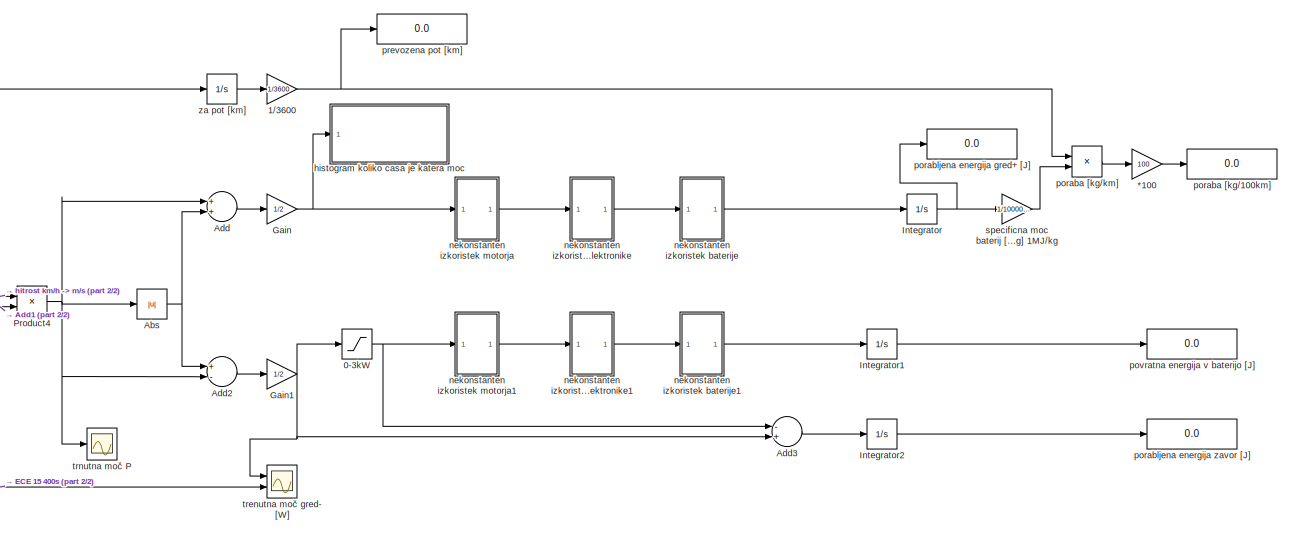
[diagram: root canvas - part 1/2, right side, full height]
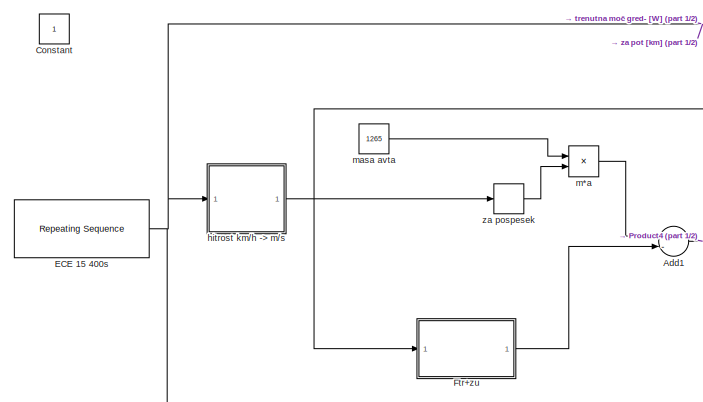
[diagram: root canvas - part 2/2, middle left region]
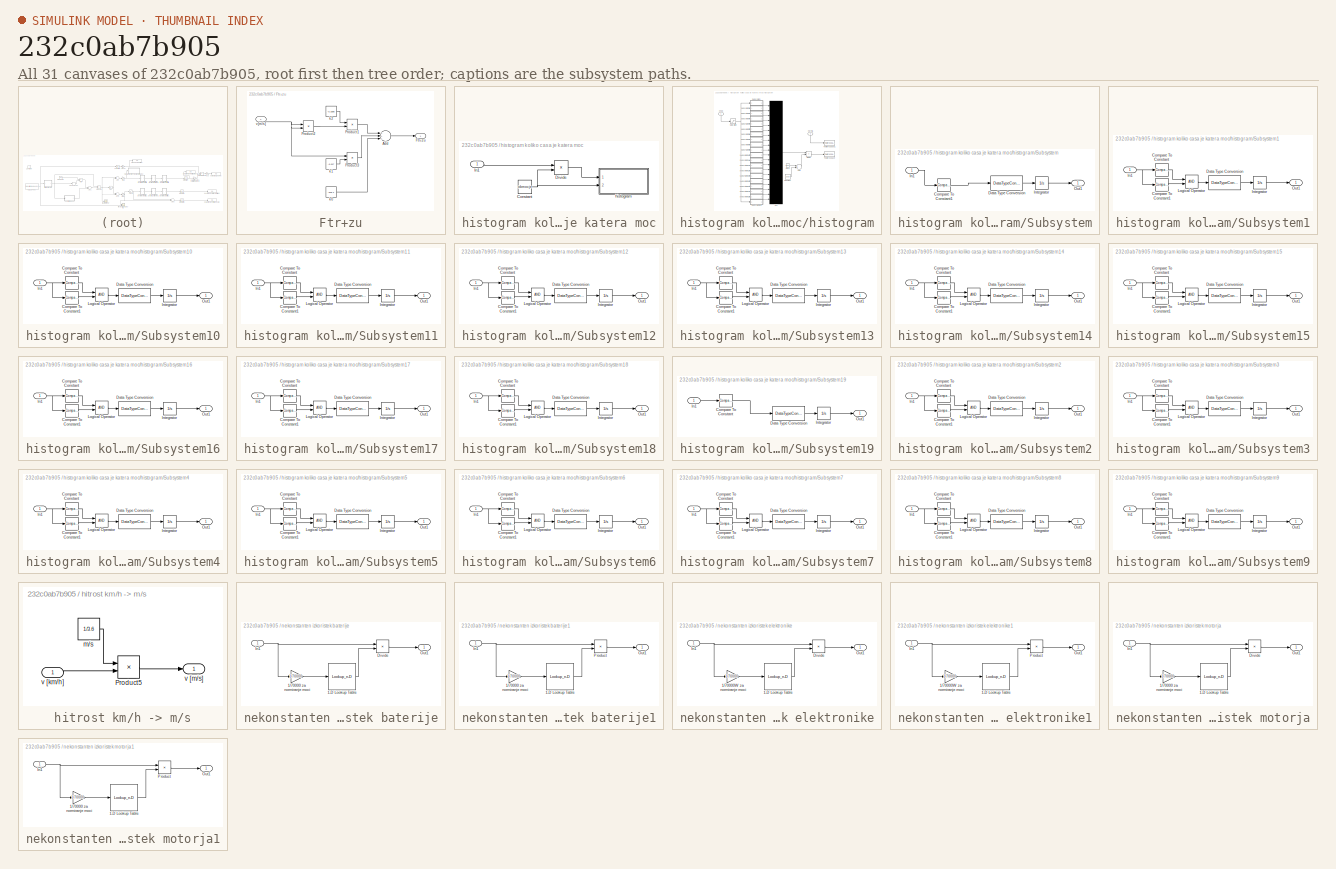
[diagram: thumbnail index - all 31 canvases of the model, root first then tree order]
MODEL slx_232c0ab7b905
KIND model
BLOCK [Gain] *100
  Gain = 100
  OutDataTypeStr = Inherit: Inherit via internal rule
  ParamDataTypeStr = Inherit: Inherit via internal rule
  SaturateOnIntegerOverflow = off
BLOCK [Saturate] 0-3kW
  InputPortMap = u0
  LowerLimit = 0
  Ports = [1, 1]
  UpperLimit = 3000
BLOCK [Gain] 1//3600
  Gain = 1/3600
  OutDataTypeStr = Inherit: Inherit via internal rule
  ParamDataTypeStr = Inherit: Inherit via internal rule
  SaturateOnIntegerOverflow = off
BLOCK [Abs] Abs
  SaturateOnIntegerOverflow = off
BLOCK [Sum] Add
  InputSameDT = off
  OutDataTypeStr = Inherit: Inherit via internal rule
  Ports = [2, 1]
  SaturateOnIntegerOverflow = off
BLOCK [Sum] Add1
  InputSameDT = off
  Inputs = +-
  OutDataTypeStr = Inherit: Inherit via internal rule
  Ports = [2, 1]
  SaturateOnIntegerOverflow = off
BLOCK [Sum] Add2
  InputSameDT = off
  Inputs = +-
  OutDataTypeStr = Inherit: Inherit via internal rule
  Ports = [2, 1]
  SaturateOnIntegerOverflow = off
BLOCK [Sum] Add3
  InputSameDT = off
  Inputs = -+
  OutDataTypeStr = Inherit: Inherit via internal rule
  Ports = [2, 1]
  SaturateOnIntegerOverflow = off
BLOCK [Constant] Constant
  IOType = siggen
BLOCK [Reference] ECE 15 400s  REF=simulink/Sources/Repeating
Sequence
  Ports = [0, 1]
  SourceBlock = simulink/Sources/Repeating\nSequence
  SourceType = Repeating table
  rep_seq_t = [0.0 11.3 15.0 23.2 28.2 48.9 60.8 85.2 95.9 117.2 142.8 154.8 162.9 176.0 188.0 200.0]
  rep_seq_y = [0.0 0.0 5.0 5.0 0.0 0.0 32.0 32.0 0.0 0.0 50.0 50.0 35.0 35.0 0.0 0.0]
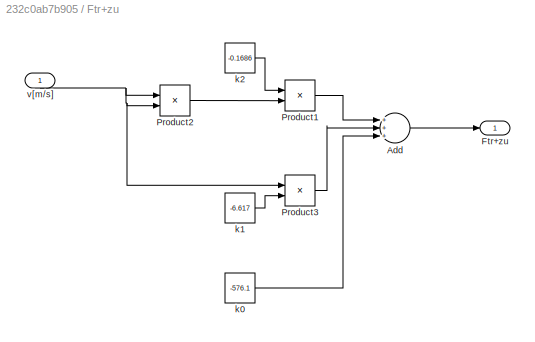
BLOCK [SubSystem] Ftr+zu
  FunctionWithSeparateData = off
  MaskHideContents = off
  MinAlgLoopOccurrences = off
  Opaque = off
  Ports = [1, 1]
  PropExecContextOutsideSubsystem = off
  RTWSystemCode = Auto
  RequestExecContextInheritance = off
BLOCK [Sum] Ftr+zu/Add
  InputSameDT = off
  Inputs = +++
  OutDataTypeStr = Inherit: Inherit via internal rule
  Ports = [3, 1]
  SaturateOnIntegerOverflow = off
BLOCK [Outport] Ftr+zu/Ftr+zu
  IconDisplay = Port number
BLOCK [Product] Ftr+zu/Product1
  InputSameDT = off
  OutDataTypeStr = Inherit: Inherit via internal rule
  Ports = [2, 1]
  RndMeth = Floor
  SaturateOnIntegerOverflow = off
BLOCK [Product] Ftr+zu/Product2
  InputSameDT = off
  OutDataTypeStr = Inherit: Inherit via internal rule
  Ports = [2, 1]
  RndMeth = Floor
  SaturateOnIntegerOverflow = off
BLOCK [Product] Ftr+zu/Product3
  InputSameDT = off
  OutDataTypeStr = Inherit: Inherit via internal rule
  Ports = [2, 1]
  RndMeth = Floor
  SaturateOnIntegerOverflow = off
BLOCK [Constant] Ftr+zu/k0
  Value = -576.1
BLOCK [Constant] Ftr+zu/k1
  Value = -6.617
BLOCK [Constant] Ftr+zu/k2
  Value = -0.1686
BLOCK [Inport] Ftr+zu/v[m//s]
  IconDisplay = Port number
BLOCK [Gain] Gain
  Gain = 1/2
  OutDataTypeStr = Inherit: Inherit via internal rule
  ParamDataTypeStr = Inherit: Inherit via internal rule
  SaturateOnIntegerOverflow = off
BLOCK [Gain] Gain1
  Gain = 1/2
  OutDataTypeStr = Inherit: Inherit via internal rule
  ParamDataTypeStr = Inherit: Inherit via internal rule
  SaturateOnIntegerOverflow = off
BLOCK [Integrator] Integrator
  Ports = [1, 1]
BLOCK [Integrator] Integrator1
  Ports = [1, 1]
BLOCK [Integrator] Integrator2
  Ports = [1, 1]
BLOCK [Product] Product4
  InputSameDT = off
  OutDataTypeStr = Inherit: Inherit via internal rule
  Ports = [2, 1]
  RndMeth = Floor
  SaturateOnIntegerOverflow = off
BLOCK [SubSystem] histogram koliko casa je katera moc
  FunctionWithSeparateData = off
  MaskHideContents = off
  MinAlgLoopOccurrences = off
  Opaque = off
  Ports = [1]
  PropExecContextOutsideSubsystem = off
  RTWSystemCode = Auto
  RequestExecContextInheritance = off
BLOCK [Constant] histogram koliko casa je katera moc/Constant
  Value = obmocje
BLOCK [Product] histogram koliko casa je katera moc/Divide
  InputSameDT = off
  Inputs = */
  OutDataTypeStr = Inherit: Inherit via internal rule
  Ports = [2, 1]
  RndMeth = Floor
  SaturateOnIntegerOverflow = off
BLOCK [Inport] histogram koliko casa je katera moc/In1
  IconDisplay = Port number
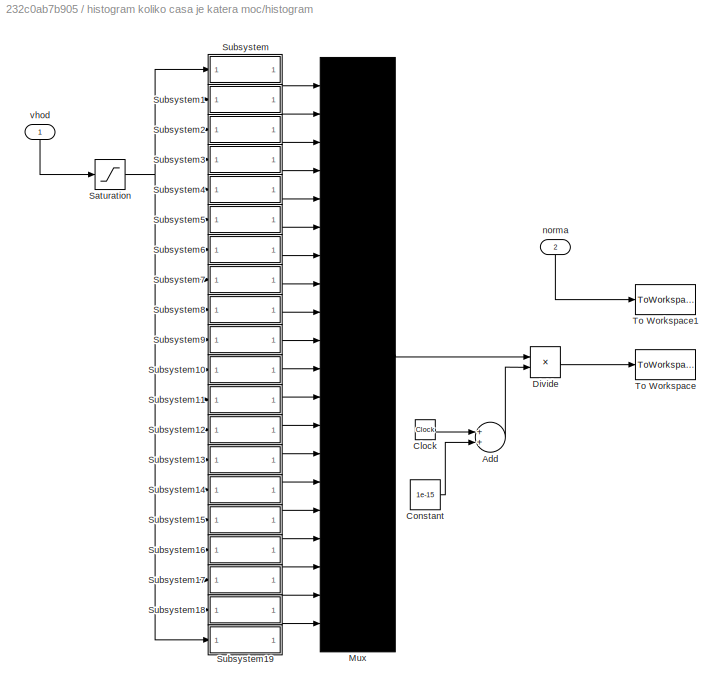
BLOCK [SubSystem] histogram koliko casa je katera moc/histogram
  FunctionWithSeparateData = off
  MaskHideContents = off
  MinAlgLoopOccurrences = off
  Opaque = off
  Ports = [2]
  PropExecContextOutsideSubsystem = off
  RTWSystemCode = Auto
  RequestExecContextInheritance = off
  StopFcn = bar((0.025:0.05:0.975)*norma,histogram_hitrost)
BLOCK [Sum] histogram koliko casa je katera moc/histogram/Add
  InputSameDT = off
  OutDataTypeStr = Inherit: Inherit via internal rule
  Ports = [2, 1]
  SaturateOnIntegerOverflow = off
BLOCK [Clock] histogram koliko casa je katera moc/histogram/Clock
BLOCK [Constant] histogram koliko casa je katera moc/histogram/Constant
  Value = 1e-15
BLOCK [Product] histogram koliko casa je katera moc/histogram/Divide
  InputSameDT = off
  Inputs = */
  OutDataTypeStr = Inherit: Inherit via internal rule
  Ports = [2, 1]
  RndMeth = Floor
  SaturateOnIntegerOverflow = off
BLOCK [Mux] histogram koliko casa je katera moc/histogram/Mux
  Inputs = 20
  Ports = [20, 1]
BLOCK [Saturate] histogram koliko casa je katera moc/histogram/Saturation
  InputPortMap = u0
  LowerLimit = 0
  Ports = [1, 1]
  UpperLimit = 1
BLOCK [SubSystem] histogram koliko casa je katera moc/histogram/Subsystem
  FunctionWithSeparateData = off
  MaskHideContents = off
  MinAlgLoopOccurrences = off
  Opaque = off
  Ports = [1, 1]
  PropExecContextOutsideSubsystem = off
  RTWSystemCode = Auto
  RequestExecContextInheritance = off
BLOCK [Reference] histogram koliko casa je katera moc/histogram/Subsystem/Compare To Constant1  REF=simulink/Logic and Bit
Operations/Compare
To Constant
  OutDataTypeStr = uint8
  Ports = [1, 1]
  SourceBlock = simulink/Logic and Bit\nOperations/Compare\nTo Constant
  SourceType = Compare To Constant
  ZeroCross = off
  const = 0.05
  relop = <
BLOCK [DataTypeConversion] histogram koliko casa je katera moc/histogram/Subsystem/Data Type Conversion
  OutDataTypeStr = double
  RndMeth = Floor
  SaturateOnIntegerOverflow = off
BLOCK [Inport] histogram koliko casa je katera moc/histogram/Subsystem/In1
  IconDisplay = Port number
BLOCK [Integrator] histogram koliko casa je katera moc/histogram/Subsystem/Integrator
  Ports = [1, 1]
  ZeroCross = off
BLOCK [Outport] histogram koliko casa je katera moc/histogram/Subsystem/Out1
  IconDisplay = Port number
BLOCK [SubSystem] histogram koliko casa je katera moc/histogram/Subsystem1
  FunctionWithSeparateData = off
  MaskHideContents = off
  MinAlgLoopOccurrences = off
  Opaque = off
  Ports = [1, 1]
  PropExecContextOutsideSubsystem = off
  RTWSystemCode = Auto
  RequestExecContextInheritance = off
BLOCK [Reference] histogram koliko casa je katera moc/histogram/Subsystem1/Compare To Constant  REF=simulink/Logic and Bit
Operations/Compare
To Constant
  OutDataTypeStr = uint8
  Ports = [1, 1]
  SourceBlock = simulink/Logic and Bit\nOperations/Compare\nTo Constant
  SourceType = Compare To Constant
  ZeroCross = off
  const = 0.05
  relop = >=
BLOCK [Reference] histogram koliko casa je katera moc/histogram/Subsystem1/Compare To Constant1  REF=simulink/Logic and Bit
Operations/Compare
To Constant
  OutDataTypeStr = uint8
  Ports = [1, 1]
  SourceBlock = simulink/Logic and Bit\nOperations/Compare\nTo Constant
  SourceType = Compare To Constant
  ZeroCross = off
  const = 0.1
  relop = <
BLOCK [DataTypeConversion] histogram koliko casa je katera moc/histogram/Subsystem1/Data Type Conversion
  OutDataTypeStr = double
  RndMeth = Floor
  SaturateOnIntegerOverflow = off
BLOCK [Inport] histogram koliko casa je katera moc/histogram/Subsystem1/In1
  IconDisplay = Port number
BLOCK [Integrator] histogram koliko casa je katera moc/histogram/Subsystem1/Integrator
  Ports = [1, 1]
  ZeroCross = off
BLOCK [Logic] histogram koliko casa je katera moc/histogram/Subsystem1/Logical Operator
  AllPortsSameDT = off
  OutDataTypeStr = boolean
  Ports = [2, 1]
BLOCK [Outport] histogram koliko casa je katera moc/histogram/Subsystem1/Out1
  IconDisplay = Port number
BLOCK [SubSystem] histogram koliko casa je katera moc/histogram/Subsystem10
  FunctionWithSeparateData = off
  MaskHideContents = off
  MinAlgLoopOccurrences = off
  Opaque = off
  Ports = [1, 1]
  PropExecContextOutsideSubsystem = off
  RTWSystemCode = Auto
  RequestExecContextInheritance = off
BLOCK [Reference] histogram koliko casa je katera moc/histogram/Subsystem10/Compare To Constant  REF=simulink/Logic and Bit
Operations/Compare
To Constant
  OutDataTypeStr = uint8
  Ports = [1, 1]
  SourceBlock = simulink/Logic and Bit\nOperations/Compare\nTo Constant
  SourceType = Compare To Constant
  ZeroCross = off
  const = 0.5
  relop = >=
BLOCK [Reference] histogram koliko casa je katera moc/histogram/Subsystem10/Compare To Constant1  REF=simulink/Logic and Bit
Operations/Compare
To Constant
  OutDataTypeStr = uint8
  Ports = [1, 1]
  SourceBlock = simulink/Logic and Bit\nOperations/Compare\nTo Constant
  SourceType = Compare To Constant
  ZeroCross = off
  const = 0.55
  relop = <
BLOCK [DataTypeConversion] histogram koliko casa je katera moc/histogram/Subsystem10/Data Type Conversion
  OutDataTypeStr = double
  RndMeth = Floor
  SaturateOnIntegerOverflow = off
BLOCK [Inport] histogram koliko casa je katera moc/histogram/Subsystem10/In1
  IconDisplay = Port number
BLOCK [Integrator] histogram koliko casa je katera moc/histogram/Subsystem10/Integrator
  Ports = [1, 1]
  ZeroCross = off
BLOCK [Logic] histogram koliko casa je katera moc/histogram/Subsystem10/Logical Operator
  AllPortsSameDT = off
  OutDataTypeStr = boolean
  Ports = [2, 1]
BLOCK [Outport] histogram koliko casa je katera moc/histogram/Subsystem10/Out1
  IconDisplay = Port number
BLOCK [SubSystem] histogram koliko casa je katera moc/histogram/Subsystem11
  FunctionWithSeparateData = off
  MaskHideContents = off
  MinAlgLoopOccurrences = off
  Opaque = off
  Ports = [1, 1]
  PropExecContextOutsideSubsystem = off
  RTWSystemCode = Auto
  RequestExecContextInheritance = off
BLOCK [Reference] histogram koliko casa je katera moc/histogram/Subsystem11/Compare To Constant  REF=simulink/Logic and Bit
Operations/Compare
To Constant
  OutDataTypeStr = uint8
  Ports = [1, 1]
  SourceBlock = simulink/Logic and Bit\nOperations/Compare\nTo Constant
  SourceType = Compare To Constant
  ZeroCross = off
  const = 0.55
  relop = >=
BLOCK [Reference] histogram koliko casa je katera moc/histogram/Subsystem11/Compare To Constant1  REF=simulink/Logic and Bit
Operations/Compare
To Constant
  OutDataTypeStr = uint8
  Ports = [1, 1]
  SourceBlock = simulink/Logic and Bit\nOperations/Compare\nTo Constant
  SourceType = Compare To Constant
  ZeroCross = off
  const = 0.6
  relop = <
BLOCK [DataTypeConversion] histogram koliko casa je katera moc/histogram/Subsystem11/Data Type Conversion
  OutDataTypeStr = double
  RndMeth = Floor
  SaturateOnIntegerOverflow = off
BLOCK [Inport] histogram koliko casa je katera moc/histogram/Subsystem11/In1
  IconDisplay = Port number
BLOCK [Integrator] histogram koliko casa je katera moc/histogram/Subsystem11/Integrator
  Ports = [1, 1]
  ZeroCross = off
BLOCK [Logic] histogram koliko casa je katera moc/histogram/Subsystem11/Logical Operator
  AllPortsSameDT = off
  OutDataTypeStr = boolean
  Ports = [2, 1]
BLOCK [Outport] histogram koliko casa je katera moc/histogram/Subsystem11/Out1
  IconDisplay = Port number
BLOCK [SubSystem] histogram koliko casa je katera moc/histogram/Subsystem12
  FunctionWithSeparateData = off
  MaskHideContents = off
  MinAlgLoopOccurrences = off
  Opaque = off
  Ports = [1, 1]
  PropExecContextOutsideSubsystem = off
  RTWSystemCode = Auto
  RequestExecContextInheritance = off
BLOCK [Reference] histogram koliko casa je katera moc/histogram/Subsystem12/Compare To Constant  REF=simulink/Logic and Bit
Operations/Compare
To Constant
  OutDataTypeStr = uint8
  Ports = [1, 1]
  SourceBlock = simulink/Logic and Bit\nOperations/Compare\nTo Constant
  SourceType = Compare To Constant
  ZeroCross = off
  const = 0.6
  relop = >=
BLOCK [Reference] histogram koliko casa je katera moc/histogram/Subsystem12/Compare To Constant1  REF=simulink/Logic and Bit
Operations/Compare
To Constant
  OutDataTypeStr = uint8
  Ports = [1, 1]
  SourceBlock = simulink/Logic and Bit\nOperations/Compare\nTo Constant
  SourceType = Compare To Constant
  ZeroCross = off
  const = 0.65
  relop = <
BLOCK [DataTypeConversion] histogram koliko casa je katera moc/histogram/Subsystem12/Data Type Conversion
  OutDataTypeStr = double
  RndMeth = Floor
  SaturateOnIntegerOverflow = off
BLOCK [Inport] histogram koliko casa je katera moc/histogram/Subsystem12/In1
  IconDisplay = Port number
BLOCK [Integrator] histogram koliko casa je katera moc/histogram/Subsystem12/Integrator
  Ports = [1, 1]
  ZeroCross = off
BLOCK [Logic] histogram koliko casa je katera moc/histogram/Subsystem12/Logical Operator
  AllPortsSameDT = off
  OutDataTypeStr = boolean
  Ports = [2, 1]
BLOCK [Outport] histogram koliko casa je katera moc/histogram/Subsystem12/Out1
  IconDisplay = Port number
BLOCK [SubSystem] histogram koliko casa je katera moc/histogram/Subsystem13
  FunctionWithSeparateData = off
  MaskHideContents = off
  MinAlgLoopOccurrences = off
  Opaque = off
  Ports = [1, 1]
  PropExecContextOutsideSubsystem = off
  RTWSystemCode = Auto
  RequestExecContextInheritance = off
BLOCK [Reference] histogram koliko casa je katera moc/histogram/Subsystem13/Compare To Constant  REF=simulink/Logic and Bit
Operations/Compare
To Constant
  OutDataTypeStr = uint8
  Ports = [1, 1]
  SourceBlock = simulink/Logic and Bit\nOperations/Compare\nTo Constant
  SourceType = Compare To Constant
  ZeroCross = off
  const = 0.65
  relop = >=
BLOCK [Reference] histogram koliko casa je katera moc/histogram/Subsystem13/Compare To Constant1  REF=simulink/Logic and Bit
Operations/Compare
To Constant
  OutDataTypeStr = uint8
  Ports = [1, 1]
  SourceBlock = simulink/Logic and Bit\nOperations/Compare\nTo Constant
  SourceType = Compare To Constant
  ZeroCross = off
  const = 0.7
  relop = <
BLOCK [DataTypeConversion] histogram koliko casa je katera moc/histogram/Subsystem13/Data Type Conversion
  OutDataTypeStr = double
  RndMeth = Floor
  SaturateOnIntegerOverflow = off
BLOCK [Inport] histogram koliko casa je katera moc/histogram/Subsystem13/In1
  IconDisplay = Port number
BLOCK [Integrator] histogram koliko casa je katera moc/histogram/Subsystem13/Integrator
  Ports = [1, 1]
  ZeroCross = off
BLOCK [Logic] histogram koliko casa je katera moc/histogram/Subsystem13/Logical Operator
  AllPortsSameDT = off
  OutDataTypeStr = boolean
  Ports = [2, 1]
BLOCK [Outport] histogram koliko casa je katera moc/histogram/Subsystem13/Out1
  IconDisplay = Port number
BLOCK [SubSystem] histogram koliko casa je katera moc/histogram/Subsystem14
  FunctionWithSeparateData = off
  MaskHideContents = off
  MinAlgLoopOccurrences = off
  Opaque = off
  Ports = [1, 1]
  PropExecContextOutsideSubsystem = off
  RTWSystemCode = Auto
  RequestExecContextInheritance = off
BLOCK [Reference] histogram koliko casa je katera moc/histogram/Subsystem14/Compare To Constant  REF=simulink/Logic and Bit
Operations/Compare
To Constant
  OutDataTypeStr = uint8
  Ports = [1, 1]
  SourceBlock = simulink/Logic and Bit\nOperations/Compare\nTo Constant
  SourceType = Compare To Constant
  ZeroCross = off
  const = 0.7
  relop = >=
BLOCK [Reference] histogram koliko casa je katera moc/histogram/Subsystem14/Compare To Constant1  REF=simulink/Logic and Bit
Operations/Compare
To Constant
  OutDataTypeStr = uint8
  Ports = [1, 1]
  SourceBlock = simulink/Logic and Bit\nOperations/Compare\nTo Constant
  SourceType = Compare To Constant
  ZeroCross = off
  const = 0.75
  relop = <
BLOCK [DataTypeConversion] histogram koliko casa je katera moc/histogram/Subsystem14/Data Type Conversion
  OutDataTypeStr = double
  RndMeth = Floor
  SaturateOnIntegerOverflow = off
BLOCK [Inport] histogram koliko casa je katera moc/histogram/Subsystem14/In1
  IconDisplay = Port number
BLOCK [Integrator] histogram koliko casa je katera moc/histogram/Subsystem14/Integrator
  Ports = [1, 1]
  ZeroCross = off
BLOCK [Logic] histogram koliko casa je katera moc/histogram/Subsystem14/Logical Operator
  AllPortsSameDT = off
  OutDataTypeStr = boolean
  Ports = [2, 1]
BLOCK [Outport] histogram koliko casa je katera moc/histogram/Subsystem14/Out1
  IconDisplay = Port number
BLOCK [SubSystem] histogram koliko casa je katera moc/histogram/Subsystem15
  FunctionWithSeparateData = off
  MaskHideContents = off
  MinAlgLoopOccurrences = off
  Opaque = off
  Ports = [1, 1]
  PropExecContextOutsideSubsystem = off
  RTWSystemCode = Auto
  RequestExecContextInheritance = off
BLOCK [Reference] histogram koliko casa je katera moc/histogram/Subsystem15/Compare To Constant  REF=simulink/Logic and Bit
Operations/Compare
To Constant
  OutDataTypeStr = uint8
  Ports = [1, 1]
  SourceBlock = simulink/Logic and Bit\nOperations/Compare\nTo Constant
  SourceType = Compare To Constant
  ZeroCross = off
  const = 0.75
  relop = >=
BLOCK [Reference] histogram koliko casa je katera moc/histogram/Subsystem15/Compare To Constant1  REF=simulink/Logic and Bit
Operations/Compare
To Constant
  OutDataTypeStr = uint8
  Ports = [1, 1]
  SourceBlock = simulink/Logic and Bit\nOperations/Compare\nTo Constant
  SourceType = Compare To Constant
  ZeroCross = off
  const = 0.8
  relop = <
BLOCK [DataTypeConversion] histogram koliko casa je katera moc/histogram/Subsystem15/Data Type Conversion
  OutDataTypeStr = double
  RndMeth = Floor
  SaturateOnIntegerOverflow = off
BLOCK [Inport] histogram koliko casa je katera moc/histogram/Subsystem15/In1
  IconDisplay = Port number
BLOCK [Integrator] histogram koliko casa je katera moc/histogram/Subsystem15/Integrator
  Ports = [1, 1]
  ZeroCross = off
BLOCK [Logic] histogram koliko casa je katera moc/histogram/Subsystem15/Logical Operator
  AllPortsSameDT = off
  OutDataTypeStr = boolean
  Ports = [2, 1]
BLOCK [Outport] histogram koliko casa je katera moc/histogram/Subsystem15/Out1
  IconDisplay = Port number
BLOCK [SubSystem] histogram koliko casa je katera moc/histogram/Subsystem16
  FunctionWithSeparateData = off
  MaskHideContents = off
  MinAlgLoopOccurrences = off
  Opaque = off
  Ports = [1, 1]
  PropExecContextOutsideSubsystem = off
  RTWSystemCode = Auto
  RequestExecContextInheritance = off
BLOCK [Reference] histogram koliko casa je katera moc/histogram/Subsystem16/Compare To Constant  REF=simulink/Logic and Bit
Operations/Compare
To Constant
  OutDataTypeStr = uint8
  Ports = [1, 1]
  SourceBlock = simulink/Logic and Bit\nOperations/Compare\nTo Constant
  SourceType = Compare To Constant
  ZeroCross = off
  const = 0.8
  relop = >=
BLOCK [Reference] histogram koliko casa je katera moc/histogram/Subsystem16/Compare To Constant1  REF=simulink/Logic and Bit
Operations/Compare
To Constant
  OutDataTypeStr = uint8
  Ports = [1, 1]
  SourceBlock = simulink/Logic and Bit\nOperations/Compare\nTo Constant
  SourceType = Compare To Constant
  ZeroCross = off
  const = 0.85
  relop = <
BLOCK [DataTypeConversion] histogram koliko casa je katera moc/histogram/Subsystem16/Data Type Conversion
  OutDataTypeStr = double
  RndMeth = Floor
  SaturateOnIntegerOverflow = off
BLOCK [Inport] histogram koliko casa je katera moc/histogram/Subsystem16/In1
  IconDisplay = Port number
BLOCK [Integrator] histogram koliko casa je katera moc/histogram/Subsystem16/Integrator
  Ports = [1, 1]
  ZeroCross = off
BLOCK [Logic] histogram koliko casa je katera moc/histogram/Subsystem16/Logical Operator
  AllPortsSameDT = off
  OutDataTypeStr = boolean
  Ports = [2, 1]
BLOCK [Outport] histogram koliko casa je katera moc/histogram/Subsystem16/Out1
  IconDisplay = Port number
BLOCK [SubSystem] histogram koliko casa je katera moc/histogram/Subsystem17
  FunctionWithSeparateData = off
  MaskHideContents = off
  MinAlgLoopOccurrences = off
  Opaque = off
  Ports = [1, 1]
  PropExecContextOutsideSubsystem = off
  RTWSystemCode = Auto
  RequestExecContextInheritance = off
BLOCK [Reference] histogram koliko casa je katera moc/histogram/Subsystem17/Compare To Constant  REF=simulink/Logic and Bit
Operations/Compare
To Constant
  OutDataTypeStr = uint8
  Ports = [1, 1]
  SourceBlock = simulink/Logic and Bit\nOperations/Compare\nTo Constant
  SourceType = Compare To Constant
  ZeroCross = off
  const = 0.85
  relop = >=
BLOCK [Reference] histogram koliko casa je katera moc/histogram/Subsystem17/Compare To Constant1  REF=simulink/Logic and Bit
Operations/Compare
To Constant
  OutDataTypeStr = uint8
  Ports = [1, 1]
  SourceBlock = simulink/Logic and Bit\nOperations/Compare\nTo Constant
  SourceType = Compare To Constant
  ZeroCross = off
  const = 0.9
  relop = <
BLOCK [DataTypeConversion] histogram koliko casa je katera moc/histogram/Subsystem17/Data Type Conversion
  OutDataTypeStr = double
  RndMeth = Floor
  SaturateOnIntegerOverflow = off
BLOCK [Inport] histogram koliko casa je katera moc/histogram/Subsystem17/In1
  IconDisplay = Port number
BLOCK [Integrator] histogram koliko casa je katera moc/histogram/Subsystem17/Integrator
  Ports = [1, 1]
  ZeroCross = off
BLOCK [Logic] histogram koliko casa je katera moc/histogram/Subsystem17/Logical Operator
  AllPortsSameDT = off
  OutDataTypeStr = boolean
  Ports = [2, 1]
BLOCK [Outport] histogram koliko casa je katera moc/histogram/Subsystem17/Out1
  IconDisplay = Port number
BLOCK [SubSystem] histogram koliko casa je katera moc/histogram/Subsystem18
  FunctionWithSeparateData = off
  MaskHideContents = off
  MinAlgLoopOccurrences = off
  Opaque = off
  Ports = [1, 1]
  PropExecContextOutsideSubsystem = off
  RTWSystemCode = Auto
  RequestExecContextInheritance = off
BLOCK [Reference] histogram koliko casa je katera moc/histogram/Subsystem18/Compare To Constant  REF=simulink/Logic and Bit
Operations/Compare
To Constant
  OutDataTypeStr = uint8
  Ports = [1, 1]
  SourceBlock = simulink/Logic and Bit\nOperations/Compare\nTo Constant
  SourceType = Compare To Constant
  ZeroCross = off
  const = 0.9
  relop = >=
BLOCK [Reference] histogram koliko casa je katera moc/histogram/Subsystem18/Compare To Constant1  REF=simulink/Logic and Bit
Operations/Compare
To Constant
  OutDataTypeStr = uint8
  Ports = [1, 1]
  SourceBlock = simulink/Logic and Bit\nOperations/Compare\nTo Constant
  SourceType = Compare To Constant
  ZeroCross = off
  const = 0.95
  relop = <
BLOCK [DataTypeConversion] histogram koliko casa je katera moc/histogram/Subsystem18/Data Type Conversion
  OutDataTypeStr = double
  RndMeth = Floor
  SaturateOnIntegerOverflow = off
BLOCK [Inport] histogram koliko casa je katera moc/histogram/Subsystem18/In1
  IconDisplay = Port number
BLOCK [Integrator] histogram koliko casa je katera moc/histogram/Subsystem18/Integrator
  Ports = [1, 1]
  ZeroCross = off
BLOCK [Logic] histogram koliko casa je katera moc/histogram/Subsystem18/Logical Operator
  AllPortsSameDT = off
  OutDataTypeStr = boolean
  Ports = [2, 1]
BLOCK [Outport] histogram koliko casa je katera moc/histogram/Subsystem18/Out1
  IconDisplay = Port number
BLOCK [SubSystem] histogram koliko casa je katera moc/histogram/Subsystem19
  FunctionWithSeparateData = off
  MaskHideContents = off
  MinAlgLoopOccurrences = off
  Opaque = off
  Ports = [1, 1]
  PropExecContextOutsideSubsystem = off
  RTWSystemCode = Auto
  RequestExecContextInheritance = off
BLOCK [Reference] histogram koliko casa je katera moc/histogram/Subsystem19/Compare To Constant  REF=simulink/Logic and Bit
Operations/Compare
To Constant
  OutDataTypeStr = uint8
  Ports = [1, 1]
  SourceBlock = simulink/Logic and Bit\nOperations/Compare\nTo Constant
  SourceType = Compare To Constant
  ZeroCross = off
  const = 0.95
  relop = >=
BLOCK [DataTypeConversion] histogram koliko casa je katera moc/histogram/Subsystem19/Data Type Conversion
  OutDataTypeStr = double
  RndMeth = Floor
  SaturateOnIntegerOverflow = off
BLOCK [Inport] histogram koliko casa je katera moc/histogram/Subsystem19/In1
  IconDisplay = Port number
BLOCK [Integrator] histogram koliko casa je katera moc/histogram/Subsystem19/Integrator
  Ports = [1, 1]
  ZeroCross = off
BLOCK [Outport] histogram koliko casa je katera moc/histogram/Subsystem19/Out1
  IconDisplay = Port number
BLOCK [SubSystem] histogram koliko casa je katera moc/histogram/Subsystem2
  FunctionWithSeparateData = off
  MaskHideContents = off
  MinAlgLoopOccurrences = off
  Opaque = off
  Ports = [1, 1]
  PropExecContextOutsideSubsystem = off
  RTWSystemCode = Auto
  RequestExecContextInheritance = off
BLOCK [Reference] histogram koliko casa je katera moc/histogram/Subsystem2/Compare To Constant  REF=simulink/Logic and Bit
Operations/Compare
To Constant
  OutDataTypeStr = uint8
  Ports = [1, 1]
  SourceBlock = simulink/Logic and Bit\nOperations/Compare\nTo Constant
  SourceType = Compare To Constant
  ZeroCross = off
  const = 0.1
  relop = >=
BLOCK [Reference] histogram koliko casa je katera moc/histogram/Subsystem2/Compare To Constant1  REF=simulink/Logic and Bit
Operations/Compare
To Constant
  OutDataTypeStr = uint8
  Ports = [1, 1]
  SourceBlock = simulink/Logic and Bit\nOperations/Compare\nTo Constant
  SourceType = Compare To Constant
  ZeroCross = off
  const = 0.15
  relop = <
BLOCK [DataTypeConversion] histogram koliko casa je katera moc/histogram/Subsystem2/Data Type Conversion
  OutDataTypeStr = double
  RndMeth = Floor
  SaturateOnIntegerOverflow = off
BLOCK [Inport] histogram koliko casa je katera moc/histogram/Subsystem2/In1
  IconDisplay = Port number
BLOCK [Integrator] histogram koliko casa je katera moc/histogram/Subsystem2/Integrator
  Ports = [1, 1]
  ZeroCross = off
BLOCK [Logic] histogram koliko casa je katera moc/histogram/Subsystem2/Logical Operator
  AllPortsSameDT = off
  OutDataTypeStr = boolean
  Ports = [2, 1]
BLOCK [Outport] histogram koliko casa je katera moc/histogram/Subsystem2/Out1
  IconDisplay = Port number
BLOCK [SubSystem] histogram koliko casa je katera moc/histogram/Subsystem3
  FunctionWithSeparateData = off
  MaskHideContents = off
  MinAlgLoopOccurrences = off
  Opaque = off
  Ports = [1, 1]
  PropExecContextOutsideSubsystem = off
  RTWSystemCode = Auto
  RequestExecContextInheritance = off
BLOCK [Reference] histogram koliko casa je katera moc/histogram/Subsystem3/Compare To Constant  REF=simulink/Logic and Bit
Operations/Compare
To Constant
  OutDataTypeStr = uint8
  Ports = [1, 1]
  SourceBlock = simulink/Logic and Bit\nOperations/Compare\nTo Constant
  SourceType = Compare To Constant
  ZeroCross = off
  const = 0.15
  relop = >=
BLOCK [Reference] histogram koliko casa je katera moc/histogram/Subsystem3/Compare To Constant1  REF=simulink/Logic and Bit
Operations/Compare
To Constant
  OutDataTypeStr = uint8
  Ports = [1, 1]
  SourceBlock = simulink/Logic and Bit\nOperations/Compare\nTo Constant
  SourceType = Compare To Constant
  ZeroCross = off
  const = 0.2
  relop = <
BLOCK [DataTypeConversion] histogram koliko casa je katera moc/histogram/Subsystem3/Data Type Conversion
  OutDataTypeStr = double
  RndMeth = Floor
  SaturateOnIntegerOverflow = off
BLOCK [Inport] histogram koliko casa je katera moc/histogram/Subsystem3/In1
  IconDisplay = Port number
BLOCK [Integrator] histogram koliko casa je katera moc/histogram/Subsystem3/Integrator
  Ports = [1, 1]
  ZeroCross = off
BLOCK [Logic] histogram koliko casa je katera moc/histogram/Subsystem3/Logical Operator
  AllPortsSameDT = off
  OutDataTypeStr = boolean
  Ports = [2, 1]
BLOCK [Outport] histogram koliko casa je katera moc/histogram/Subsystem3/Out1
  IconDisplay = Port number
BLOCK [SubSystem] histogram koliko casa je katera moc/histogram/Subsystem4
  FunctionWithSeparateData = off
  MaskHideContents = off
  MinAlgLoopOccurrences = off
  Opaque = off
  Ports = [1, 1]
  PropExecContextOutsideSubsystem = off
  RTWSystemCode = Auto
  RequestExecContextInheritance = off
BLOCK [Reference] histogram koliko casa je katera moc/histogram/Subsystem4/Compare To Constant  REF=simulink/Logic and Bit
Operations/Compare
To Constant
  OutDataTypeStr = uint8
  Ports = [1, 1]
  SourceBlock = simulink/Logic and Bit\nOperations/Compare\nTo Constant
  SourceType = Compare To Constant
  ZeroCross = off
  const = 0.2
  relop = >=
BLOCK [Reference] histogram koliko casa je katera moc/histogram/Subsystem4/Compare To Constant1  REF=simulink/Logic and Bit
Operations/Compare
To Constant
  OutDataTypeStr = uint8
  Ports = [1, 1]
  SourceBlock = simulink/Logic and Bit\nOperations/Compare\nTo Constant
  SourceType = Compare To Constant
  ZeroCross = off
  const = 0.25
  relop = <
BLOCK [DataTypeConversion] histogram koliko casa je katera moc/histogram/Subsystem4/Data Type Conversion
  OutDataTypeStr = double
  RndMeth = Floor
  SaturateOnIntegerOverflow = off
BLOCK [Inport] histogram koliko casa je katera moc/histogram/Subsystem4/In1
  IconDisplay = Port number
BLOCK [Integrator] histogram koliko casa je katera moc/histogram/Subsystem4/Integrator
  Ports = [1, 1]
  ZeroCross = off
BLOCK [Logic] histogram koliko casa je katera moc/histogram/Subsystem4/Logical Operator
  AllPortsSameDT = off
  OutDataTypeStr = boolean
  Ports = [2, 1]
BLOCK [Outport] histogram koliko casa je katera moc/histogram/Subsystem4/Out1
  IconDisplay = Port number
BLOCK [SubSystem] histogram koliko casa je katera moc/histogram/Subsystem5
  FunctionWithSeparateData = off
  MaskHideContents = off
  MinAlgLoopOccurrences = off
  Opaque = off
  Ports = [1, 1]
  PropExecContextOutsideSubsystem = off
  RTWSystemCode = Auto
  RequestExecContextInheritance = off
BLOCK [Reference] histogram koliko casa je katera moc/histogram/Subsystem5/Compare To Constant  REF=simulink/Logic and Bit
Operations/Compare
To Constant
  OutDataTypeStr = uint8
  Ports = [1, 1]
  SourceBlock = simulink/Logic and Bit\nOperations/Compare\nTo Constant
  SourceType = Compare To Constant
  ZeroCross = off
  const = 0.25
  relop = >=
BLOCK [Reference] histogram koliko casa je katera moc/histogram/Subsystem5/Compare To Constant1  REF=simulink/Logic and Bit
Operations/Compare
To Constant
  OutDataTypeStr = uint8
  Ports = [1, 1]
  SourceBlock = simulink/Logic and Bit\nOperations/Compare\nTo Constant
  SourceType = Compare To Constant
  ZeroCross = off
  const = 0.3
  relop = <
BLOCK [DataTypeConversion] histogram koliko casa je katera moc/histogram/Subsystem5/Data Type Conversion
  OutDataTypeStr = double
  RndMeth = Floor
  SaturateOnIntegerOverflow = off
BLOCK [Inport] histogram koliko casa je katera moc/histogram/Subsystem5/In1
  IconDisplay = Port number
BLOCK [Integrator] histogram koliko casa je katera moc/histogram/Subsystem5/Integrator
  Ports = [1, 1]
  ZeroCross = off
BLOCK [Logic] histogram koliko casa je katera moc/histogram/Subsystem5/Logical Operator
  AllPortsSameDT = off
  OutDataTypeStr = boolean
  Ports = [2, 1]
BLOCK [Outport] histogram koliko casa je katera moc/histogram/Subsystem5/Out1
  IconDisplay = Port number
BLOCK [SubSystem] histogram koliko casa je katera moc/histogram/Subsystem6
  FunctionWithSeparateData = off
  MaskHideContents = off
  MinAlgLoopOccurrences = off
  Opaque = off
  Ports = [1, 1]
  PropExecContextOutsideSubsystem = off
  RTWSystemCode = Auto
  RequestExecContextInheritance = off
BLOCK [Reference] histogram koliko casa je katera moc/histogram/Subsystem6/Compare To Constant  REF=simulink/Logic and Bit
Operations/Compare
To Constant
  OutDataTypeStr = uint8
  Ports = [1, 1]
  SourceBlock = simulink/Logic and Bit\nOperations/Compare\nTo Constant
  SourceType = Compare To Constant
  ZeroCross = off
  const = 0.3
  relop = >=
BLOCK [Reference] histogram koliko casa je katera moc/histogram/Subsystem6/Compare To Constant1  REF=simulink/Logic and Bit
Operations/Compare
To Constant
  OutDataTypeStr = uint8
  Ports = [1, 1]
  SourceBlock = simulink/Logic and Bit\nOperations/Compare\nTo Constant
  SourceType = Compare To Constant
  ZeroCross = off
  const = 0.35
  relop = <
BLOCK [DataTypeConversion] histogram koliko casa je katera moc/histogram/Subsystem6/Data Type Conversion
  OutDataTypeStr = double
  RndMeth = Floor
  SaturateOnIntegerOverflow = off
BLOCK [Inport] histogram koliko casa je katera moc/histogram/Subsystem6/In1
  IconDisplay = Port number
BLOCK [Integrator] histogram koliko casa je katera moc/histogram/Subsystem6/Integrator
  Ports = [1, 1]
  ZeroCross = off
BLOCK [Logic] histogram koliko casa je katera moc/histogram/Subsystem6/Logical Operator
  AllPortsSameDT = off
  OutDataTypeStr = boolean
  Ports = [2, 1]
BLOCK [Outport] histogram koliko casa je katera moc/histogram/Subsystem6/Out1
  IconDisplay = Port number
BLOCK [SubSystem] histogram koliko casa je katera moc/histogram/Subsystem7
  FunctionWithSeparateData = off
  MaskHideContents = off
  MinAlgLoopOccurrences = off
  Opaque = off
  Ports = [1, 1]
  PropExecContextOutsideSubsystem = off
  RTWSystemCode = Auto
  RequestExecContextInheritance = off
BLOCK [Reference] histogram koliko casa je katera moc/histogram/Subsystem7/Compare To Constant  REF=simulink/Logic and Bit
Operations/Compare
To Constant
  OutDataTypeStr = uint8
  Ports = [1, 1]
  SourceBlock = simulink/Logic and Bit\nOperations/Compare\nTo Constant
  SourceType = Compare To Constant
  ZeroCross = off
  const = 0.35
  relop = >=
BLOCK [Reference] histogram koliko casa je katera moc/histogram/Subsystem7/Compare To Constant1  REF=simulink/Logic and Bit
Operations/Compare
To Constant
  OutDataTypeStr = uint8
  Ports = [1, 1]
  SourceBlock = simulink/Logic and Bit\nOperations/Compare\nTo Constant
  SourceType = Compare To Constant
  ZeroCross = off
  const = 0.4
  relop = <
BLOCK [DataTypeConversion] histogram koliko casa je katera moc/histogram/Subsystem7/Data Type Conversion
  OutDataTypeStr = double
  RndMeth = Floor
  SaturateOnIntegerOverflow = off
BLOCK [Inport] histogram koliko casa je katera moc/histogram/Subsystem7/In1
  IconDisplay = Port number
BLOCK [Integrator] histogram koliko casa je katera moc/histogram/Subsystem7/Integrator
  Ports = [1, 1]
  ZeroCross = off
BLOCK [Logic] histogram koliko casa je katera moc/histogram/Subsystem7/Logical Operator
  AllPortsSameDT = off
  OutDataTypeStr = boolean
  Ports = [2, 1]
BLOCK [Outport] histogram koliko casa je katera moc/histogram/Subsystem7/Out1
  IconDisplay = Port number
BLOCK [SubSystem] histogram koliko casa je katera moc/histogram/Subsystem8
  FunctionWithSeparateData = off
  MaskHideContents = off
  MinAlgLoopOccurrences = off
  Opaque = off
  Ports = [1, 1]
  PropExecContextOutsideSubsystem = off
  RTWSystemCode = Auto
  RequestExecContextInheritance = off
BLOCK [Reference] histogram koliko casa je katera moc/histogram/Subsystem8/Compare To Constant  REF=simulink/Logic and Bit
Operations/Compare
To Constant
  OutDataTypeStr = uint8
  Ports = [1, 1]
  SourceBlock = simulink/Logic and Bit\nOperations/Compare\nTo Constant
  SourceType = Compare To Constant
  ZeroCross = off
  const = 0.4
  relop = >=
BLOCK [Reference] histogram koliko casa je katera moc/histogram/Subsystem8/Compare To Constant1  REF=simulink/Logic and Bit
Operations/Compare
To Constant
  OutDataTypeStr = uint8
  Ports = [1, 1]
  SourceBlock = simulink/Logic and Bit\nOperations/Compare\nTo Constant
  SourceType = Compare To Constant
  ZeroCross = off
  const = 0.45
  relop = <
BLOCK [DataTypeConversion] histogram koliko casa je katera moc/histogram/Subsystem8/Data Type Conversion
  OutDataTypeStr = double
  RndMeth = Floor
  SaturateOnIntegerOverflow = off
BLOCK [Inport] histogram koliko casa je katera moc/histogram/Subsystem8/In1
  IconDisplay = Port number
BLOCK [Integrator] histogram koliko casa je katera moc/histogram/Subsystem8/Integrator
  Ports = [1, 1]
  ZeroCross = off
BLOCK [Logic] histogram koliko casa je katera moc/histogram/Subsystem8/Logical Operator
  AllPortsSameDT = off
  OutDataTypeStr = boolean
  Ports = [2, 1]
BLOCK [Outport] histogram koliko casa je katera moc/histogram/Subsystem8/Out1
  IconDisplay = Port number
BLOCK [SubSystem] histogram koliko casa je katera moc/histogram/Subsystem9
  FunctionWithSeparateData = off
  MaskHideContents = off
  MinAlgLoopOccurrences = off
  Opaque = off
  Ports = [1, 1]
  PropExecContextOutsideSubsystem = off
  RTWSystemCode = Auto
  RequestExecContextInheritance = off
BLOCK [Reference] histogram koliko casa je katera moc/histogram/Subsystem9/Compare To Constant  REF=simulink/Logic and Bit
Operations/Compare
To Constant
  OutDataTypeStr = uint8
  Ports = [1, 1]
  SourceBlock = simulink/Logic and Bit\nOperations/Compare\nTo Constant
  SourceType = Compare To Constant
  ZeroCross = off
  const = 0.45
  relop = >=
BLOCK [Reference] histogram koliko casa je katera moc/histogram/Subsystem9/Compare To Constant1  REF=simulink/Logic and Bit
Operations/Compare
To Constant
  OutDataTypeStr = uint8
  Ports = [1, 1]
  SourceBlock = simulink/Logic and Bit\nOperations/Compare\nTo Constant
  SourceType = Compare To Constant
  ZeroCross = off
  const = 0.5
  relop = <
BLOCK [DataTypeConversion] histogram koliko casa je katera moc/histogram/Subsystem9/Data Type Conversion
  OutDataTypeStr = double
  RndMeth = Floor
  SaturateOnIntegerOverflow = off
BLOCK [Inport] histogram koliko casa je katera moc/histogram/Subsystem9/In1
  IconDisplay = Port number
BLOCK [Integrator] histogram koliko casa je katera moc/histogram/Subsystem9/Integrator
  Ports = [1, 1]
  ZeroCross = off
BLOCK [Logic] histogram koliko casa je katera moc/histogram/Subsystem9/Logical Operator
  AllPortsSameDT = off
  OutDataTypeStr = boolean
  Ports = [2, 1]
BLOCK [Outport] histogram koliko casa je katera moc/histogram/Subsystem9/Out1
  IconDisplay = Port number
BLOCK [ToWorkspace] histogram koliko casa je katera moc/histogram/To Workspace
  MaxDataPoints = 1
  Ports = [1]
  SampleTime = -1
  VariableName = histogram_hitrost
BLOCK [ToWorkspace] histogram koliko casa je katera moc/histogram/To Workspace1
  MaxDataPoints = 1
  Ports = [1]
  SampleTime = -1
  VariableName = norma
BLOCK [Inport] histogram koliko casa je katera moc/histogram/norma
  IconDisplay = Port number
  Port = 2
BLOCK [Inport] histogram koliko casa je katera moc/histogram/vhod
  IconDisplay = Port number
BLOCK [SubSystem] hitrost km//h -> m//s
  FunctionWithSeparateData = off
  MaskHideContents = off
  MinAlgLoopOccurrences = off
  Opaque = off
  Ports = [1, 1]
  PropExecContextOutsideSubsystem = off
  RTWSystemCode = Auto
  RequestExecContextInheritance = off
BLOCK [Product] hitrost km//h -> m//s/Product5
  InputSameDT = off
  OutDataTypeStr = Inherit: Inherit via internal rule
  Ports = [2, 1]
  RndMeth = Floor
  SaturateOnIntegerOverflow = off
BLOCK [Constant] hitrost km//h -> m//s/m//s 
  Value = 1/3.6
BLOCK [Inport] hitrost km//h -> m//s/v [km//h]
  IconDisplay = Port number
BLOCK [Outport] hitrost km//h -> m//s/v [m//s]
  IconDisplay = Port number
BLOCK [Product] m*a
  InputSameDT = off
  OutDataTypeStr = Inherit: Inherit via internal rule
  Ports = [2, 1]
  RndMeth = Floor
  SaturateOnIntegerOverflow = off
BLOCK [Constant] masa avta
  Value = 1265
BLOCK [SubSystem] nekonstanten izkoristek baterije
  FunctionWithSeparateData = off
  MaskHideContents = off
  MinAlgLoopOccurrences = off
  Opaque = off
  Ports = [1, 1]
  PropExecContextOutsideSubsystem = off
  RTWSystemCode = Auto
  RequestExecContextInheritance = off
BLOCK [Lookup_n-D] nekonstanten izkoristek baterije/1-D Lookup Table
  BreakpointsForDimension1 = [0 1]
  NumberOfTableDimensions = 1
  Ports = [1, 1]
  RndMeth = Simplest
  Table = [0.99 0.93]
BLOCK [Gain] nekonstanten izkoristek baterije/1//70000 za normiranje moci
  Gain = 1/70000
  OutDataTypeStr = Inherit: Inherit via internal rule
  ParamDataTypeStr = Inherit: Inherit via internal rule
  SaturateOnIntegerOverflow = off
BLOCK [Product] nekonstanten izkoristek baterije/Divide
  InputSameDT = off
  Inputs = */
  OutDataTypeStr = Inherit: Inherit via internal rule
  Ports = [2, 1]
  RndMeth = Floor
  SaturateOnIntegerOverflow = off
BLOCK [Inport] nekonstanten izkoristek baterije/In1
  IconDisplay = Port number
BLOCK [Outport] nekonstanten izkoristek baterije/Out1
  IconDisplay = Port number
BLOCK [SubSystem] nekonstanten izkoristek baterije1
  FunctionWithSeparateData = off
  MaskHideContents = off
  MinAlgLoopOccurrences = off
  Opaque = off
  Ports = [1, 1]
  PropExecContextOutsideSubsystem = off
  RTWSystemCode = Auto
  RequestExecContextInheritance = off
BLOCK [Lookup_n-D] nekonstanten izkoristek baterije1/1-D Lookup Table
  BreakpointsForDimension1 = [0 1]
  NumberOfTableDimensions = 1
  Ports = [1, 1]
  RndMeth = Simplest
  Table = [0.99 0.93]
BLOCK [Gain] nekonstanten izkoristek baterije1/1//70000 za normiranje moci
  Gain = 1/70000
  OutDataTypeStr = Inherit: Inherit via internal rule
  ParamDataTypeStr = Inherit: Inherit via internal rule
  SaturateOnIntegerOverflow = off
BLOCK [Inport] nekonstanten izkoristek baterije1/In1
  IconDisplay = Port number
BLOCK [Outport] nekonstanten izkoristek baterije1/Out1
  IconDisplay = Port number
BLOCK [Product] nekonstanten izkoristek baterije1/Product
  InputSameDT = off
  OutDataTypeStr = Inherit: Inherit via internal rule
  Ports = [2, 1]
  RndMeth = Floor
  SaturateOnIntegerOverflow = off
BLOCK [SubSystem] nekonstanten izkoristek elektronike
  FunctionWithSeparateData = off
  MaskHideContents = off
  MinAlgLoopOccurrences = off
  Opaque = off
  Ports = [1, 1]
  PropExecContextOutsideSubsystem = off
  RTWSystemCode = Auto
  RequestExecContextInheritance = off
BLOCK [Lookup_n-D] nekonstanten izkoristek elektronike/1-D Lookup Table
  BreakpointsForDimension1 = [0 0.02 0.5 1]
  NumberOfTableDimensions = 1
  Ports = [1, 1]
  RndMeth = Simplest
  Table = [0.001 0.9 0.95 0.9]
BLOCK [Gain] nekonstanten izkoristek elektronike/1//70000W za normiranje moci
  Gain = 1/70000
  OutDataTypeStr = Inherit: Inherit via internal rule
  ParamDataTypeStr = Inherit: Inherit via internal rule
  SaturateOnIntegerOverflow = off
BLOCK [Product] nekonstanten izkoristek elektronike/Divide
  InputSameDT = off
  Inputs = */
  OutDataTypeStr = Inherit: Inherit via internal rule
  Ports = [2, 1]
  RndMeth = Floor
  SaturateOnIntegerOverflow = off
BLOCK [Inport] nekonstanten izkoristek elektronike/In1
  IconDisplay = Port number
BLOCK [Outport] nekonstanten izkoristek elektronike/Out1
  IconDisplay = Port number
BLOCK [SubSystem] nekonstanten izkoristek elektronike1
  FunctionWithSeparateData = off
  MaskHideContents = off
  MinAlgLoopOccurrences = off
  Opaque = off
  Ports = [1, 1]
  PropExecContextOutsideSubsystem = off
  RTWSystemCode = Auto
  RequestExecContextInheritance = off
BLOCK [Lookup_n-D] nekonstanten izkoristek elektronike1/1-D Lookup Table
  BreakpointsForDimension1 = [0 0.02 0.5 1]
  NumberOfTableDimensions = 1
  Ports = [1, 1]
  RndMeth = Simplest
  Table = [0.001 0.9 0.95 0.9]
BLOCK [Gain] nekonstanten izkoristek elektronike1/1//70000W za normiranje moci
  Gain = 1/70000
  OutDataTypeStr = Inherit: Inherit via internal rule
  ParamDataTypeStr = Inherit: Inherit via internal rule
  SaturateOnIntegerOverflow = off
BLOCK [Inport] nekonstanten izkoristek elektronike1/In1
  IconDisplay = Port number
BLOCK [Outport] nekonstanten izkoristek elektronike1/Out1
  IconDisplay = Port number
BLOCK [Product] nekonstanten izkoristek elektronike1/Product
  InputSameDT = off
  OutDataTypeStr = Inherit: Inherit via internal rule
  Ports = [2, 1]
  RndMeth = Floor
  SaturateOnIntegerOverflow = off
BLOCK [SubSystem] nekonstanten izkoristek motorja
  FunctionWithSeparateData = off
  MaskHideContents = off
  MinAlgLoopOccurrences = off
  Opaque = off
  Ports = [1, 1]
  PropExecContextOutsideSubsystem = off
  RTWSystemCode = Auto
  RequestExecContextInheritance = off
BLOCK [Lookup_n-D] nekonstanten izkoristek motorja/1-D Lookup Table
  BreakpointsForDimension1 = [0 0.05 1]
  NumberOfTableDimensions = 1
  Ports = [1, 1]
  RndMeth = Simplest
  Table = [0.001 0.95 0.6]
BLOCK [Gain] nekonstanten izkoristek motorja/1//70000 za normiranje moci
  Gain = 1/70000
  OutDataTypeStr = Inherit: Inherit via internal rule
  ParamDataTypeStr = Inherit: Inherit via internal rule
  SaturateOnIntegerOverflow = off
BLOCK [Product] nekonstanten izkoristek motorja/Divide
  InputSameDT = off
  Inputs = */
  OutDataTypeStr = Inherit: Inherit via internal rule
  Ports = [2, 1]
  RndMeth = Floor
  SaturateOnIntegerOverflow = off
BLOCK [Inport] nekonstanten izkoristek motorja/In1
  IconDisplay = Port number
BLOCK [Outport] nekonstanten izkoristek motorja/Out1
  IconDisplay = Port number
BLOCK [SubSystem] nekonstanten izkoristek motorja1
  FunctionWithSeparateData = off
  MaskHideContents = off
  MinAlgLoopOccurrences = off
  Opaque = off
  Ports = [1, 1]
  PropExecContextOutsideSubsystem = off
  RTWSystemCode = Auto
  RequestExecContextInheritance = off
BLOCK [Lookup_n-D] nekonstanten izkoristek motorja1/1-D Lookup Table
  BreakpointsForDimension1 = [0 0.05 1]
  NumberOfTableDimensions = 1
  Ports = [1, 1]
  RndMeth = Simplest
  Table = [0.001 0.95 0.6]
BLOCK [Gain] nekonstanten izkoristek motorja1/1//70000 za normiranje moci
  Gain = 1/70000
  OutDataTypeStr = Inherit: Inherit via internal rule
  ParamDataTypeStr = Inherit: Inherit via internal rule
  SaturateOnIntegerOverflow = off
BLOCK [Inport] nekonstanten izkoristek motorja1/In1
  IconDisplay = Port number
BLOCK [Outport] nekonstanten izkoristek motorja1/Out1
  IconDisplay = Port number
BLOCK [Product] nekonstanten izkoristek motorja1/Product
  InputSameDT = off
  OutDataTypeStr = Inherit: Inherit via internal rule
  Ports = [2, 1]
  RndMeth = Floor
  SaturateOnIntegerOverflow = off
BLOCK [Display] poraba [kg//100km]
  Decimation = 1
  Lockdown = off
  Ports = [1]
BLOCK [Product] poraba [kg//km]
  InputSameDT = off
  Inputs = /*
  OutDataTypeStr = Inherit: Inherit via internal rule
  Ports = [2, 1]
  RndMeth = Floor
  SaturateOnIntegerOverflow = off
BLOCK [Display] porabljena energija gred+ [J]
  Decimation = 1
  Lockdown = off
  Ports = [1]
BLOCK [Display] porabljena energija zavor [J]
  Decimation = 1
  Lockdown = off
  Ports = [1]
BLOCK [Display] povratna energija v baterijo  [J]
  Decimation = 1
  Lockdown = off
  Ports = [1]
BLOCK [Display] prevozena pot [km]
  Decimation = 1
  Lockdown = off
  Ports = [1]
BLOCK [Gain] specificna moc baterij [J//kg] 1MJ//kg
  Gain = 1/1000000
  OutDataTypeStr = Inherit: Inherit via internal rule
  ParamDataTypeStr = Inherit: Inherit via internal rule
  SaturateOnIntegerOverflow = off
BLOCK [Scope] trenutna moč gred- [W]
  DataFormat = StructureWithTime
  Floating = off
  LimitDataPoints = off
  NumInputPorts = 2
  Ports = [2]
  SampleTime = 0
  ShowLegends = off
  YMax = 5~5
  YMin = -5~-5
  ZoomMode = yonly
BLOCK [Scope] trnutna moč P
  DataFormat = StructureWithTime
  Floating = off
  NumInputPorts = 1
  Ports = [1]
  SampleTime = 0
  SaveName = ScopeData1
  ShowLegends = off
BLOCK [Derivative] za pospesek
BLOCK [Integrator] za pot [km]
  Ports = [1, 1]
LINE *100:1 -> poraba [kg//100km]:1
NET 0-3kW:1 -> Add3:1, nekonstanten izkoristek motorja1:1
NET 1//3600:1 -> poraba [kg//km]:1, prevozena pot [km]:1
NET Abs:1 -> Add2:1, Add:2
LINE Add1:1 -> Product4:2
LINE Add2:1 -> Gain1:1
LINE Add3:1 -> Integrator2:1
LINE Add:1 -> Gain:1
NET ECE 15 400s:1 -> hitrost km//h -> m//s:1, trenutna moč gred- [W]:2, za pot [km]:1
LINE Ftr+zu/Add:1 -> Ftr+zu/Ftr+zu:1
LINE Ftr+zu/Product1:1 -> Ftr+zu/Add:1
LINE Ftr+zu/Product2:1 -> Ftr+zu/Product1:2
LINE Ftr+zu/Product3:1 -> Ftr+zu/Add:2
LINE Ftr+zu/k0:1 -> Ftr+zu/Add:3
LINE Ftr+zu/k1:1 -> Ftr+zu/Product3:2
LINE Ftr+zu/k2:1 -> Ftr+zu/Product1:1
NET Ftr+zu/v[m//s]:1 -> Ftr+zu/Product2:1, Ftr+zu/Product2:2, Ftr+zu/Product3:1
LINE Ftr+zu:1 -> Add1:2
NET Gain1:1 -> 0-3kW:1, Add3:2, trenutna moč gred- [W]:1
NET Gain:1 -> histogram koliko casa je katera moc:1, nekonstanten izkoristek motorja:1
LINE Integrator1:1 -> povratna energija v baterijo  [J]:1
LINE Integrator2:1 -> porabljena energija zavor [J]:1
NET Integrator:1 -> porabljena energija gred+ [J]:1, specificna moc baterij [J//kg] 1MJ//kg:1
NET Product4:1 -> Abs:1, Add2:2, Add:1, trnutna moč P:1
NET histogram koliko casa je katera moc/Constant:1 -> histogram koliko casa je katera moc/Divide:2, histogram koliko casa je katera moc/histogram:2
LINE histogram koliko casa je katera moc/Divide:1 -> histogram koliko casa je katera moc/histogram:1
LINE histogram koliko casa je katera moc/In1:1 -> histogram koliko casa je katera moc/Divide:1
LINE histogram koliko casa je katera moc/histogram/Add:1 -> histogram koliko casa je katera moc/histogram/Divide:2
LINE histogram koliko casa je katera moc/histogram/Clock:1 -> histogram koliko casa je katera moc/histogram/Add:1
LINE histogram koliko casa je katera moc/histogram/Constant:1 -> histogram koliko casa je katera moc/histogram/Add:2
LINE histogram koliko casa je katera moc/histogram/Divide:1 -> histogram koliko casa je katera moc/histogram/To Workspace:1
LINE histogram koliko casa je katera moc/histogram/Mux:1 -> histogram koliko casa je katera moc/histogram/Divide:1
NET histogram koliko casa je katera moc/histogram/Saturation:1 -> histogram koliko casa je katera moc/histogram/Subsystem10:1, histogram koliko casa je katera moc/histogram/Subsystem11:1, histogram koliko casa je katera moc/histogram/Subsystem12:1, histogram koliko casa je katera moc/histogram/Subsystem13:1, histogram koliko casa je katera moc/histogram/Subsystem14:1, histogram koliko casa je katera moc/histogram/Subsystem15:1, histogram koliko casa je katera moc/histogram/Subsystem16:1, histogram koliko casa je katera moc/histogram/Subsystem17:1, histogram koliko casa je katera moc/histogram/Subsystem18:1, histogram koliko casa je katera moc/histogram/Subsystem19:1, histogram koliko casa je katera moc/histogram/Subsystem1:1, histogram koliko casa je katera moc/histogram/Subsystem2:1, histogram koliko casa je katera moc/histogram/Subsystem3:1, histogram koliko casa je katera moc/histogram/Subsystem4:1, histogram koliko casa je katera moc/histogram/Subsystem5:1, histogram koliko casa je katera moc/histogram/Subsystem6:1, histogram koliko casa je katera moc/histogram/Subsystem7:1, histogram koliko casa je katera moc/histogram/Subsystem8:1, histogram koliko casa je katera moc/histogram/Subsystem9:1, histogram koliko casa je katera moc/histogram/Subsystem:1
LINE histogram koliko casa je katera moc/histogram/Subsystem/Compare To Constant1:1 -> histogram koliko casa je katera moc/histogram/Subsystem/Data Type Conversion:1
LINE histogram koliko casa je katera moc/histogram/Subsystem/Data Type Conversion:1 -> histogram koliko casa je katera moc/histogram/Subsystem/Integrator:1
LINE histogram koliko casa je katera moc/histogram/Subsystem/In1:1 -> histogram koliko casa je katera moc/histogram/Subsystem/Compare To Constant1:1
LINE histogram koliko casa je katera moc/histogram/Subsystem/Integrator:1 -> histogram koliko casa je katera moc/histogram/Subsystem/Out1:1
LINE histogram koliko casa je katera moc/histogram/Subsystem1/Compare To Constant1:1 -> histogram koliko casa je katera moc/histogram/Subsystem1/Logical Operator:2
LINE histogram koliko casa je katera moc/histogram/Subsystem1/Compare To Constant:1 -> histogram koliko casa je katera moc/histogram/Subsystem1/Logical Operator:1
LINE histogram koliko casa je katera moc/histogram/Subsystem1/Data Type Conversion:1 -> histogram koliko casa je katera moc/histogram/Subsystem1/Integrator:1
NET histogram koliko casa je katera moc/histogram/Subsystem1/In1:1 -> histogram koliko casa je katera moc/histogram/Subsystem1/Compare To Constant1:1, histogram koliko casa je katera moc/histogram/Subsystem1/Compare To Constant:1
LINE histogram koliko casa je katera moc/histogram/Subsystem1/Integrator:1 -> histogram koliko casa je katera moc/histogram/Subsystem1/Out1:1
LINE histogram koliko casa je katera moc/histogram/Subsystem1/Logical Operator:1 -> histogram koliko casa je katera moc/histogram/Subsystem1/Data Type Conversion:1
LINE histogram koliko casa je katera moc/histogram/Subsystem10/Compare To Constant1:1 -> histogram koliko casa je katera moc/histogram/Subsystem10/Logical Operator:2
LINE histogram koliko casa je katera moc/histogram/Subsystem10/Compare To Constant:1 -> histogram koliko casa je katera moc/histogram/Subsystem10/Logical Operator:1
LINE histogram koliko casa je katera moc/histogram/Subsystem10/Data Type Conversion:1 -> histogram koliko casa je katera moc/histogram/Subsystem10/Integrator:1
NET histogram koliko casa je katera moc/histogram/Subsystem10/In1:1 -> histogram koliko casa je katera moc/histogram/Subsystem10/Compare To Constant1:1, histogram koliko casa je katera moc/histogram/Subsystem10/Compare To Constant:1
LINE histogram koliko casa je katera moc/histogram/Subsystem10/Integrator:1 -> histogram koliko casa je katera moc/histogram/Subsystem10/Out1:1
LINE histogram koliko casa je katera moc/histogram/Subsystem10/Logical Operator:1 -> histogram koliko casa je katera moc/histogram/Subsystem10/Data Type Conversion:1
LINE histogram koliko casa je katera moc/histogram/Subsystem10:1 -> histogram koliko casa je katera moc/histogram/Mux:11
LINE histogram koliko casa je katera moc/histogram/Subsystem11/Compare To Constant1:1 -> histogram koliko casa je katera moc/histogram/Subsystem11/Logical Operator:2
LINE histogram koliko casa je katera moc/histogram/Subsystem11/Compare To Constant:1 -> histogram koliko casa je katera moc/histogram/Subsystem11/Logical Operator:1
LINE histogram koliko casa je katera moc/histogram/Subsystem11/Data Type Conversion:1 -> histogram koliko casa je katera moc/histogram/Subsystem11/Integrator:1
NET histogram koliko casa je katera moc/histogram/Subsystem11/In1:1 -> histogram koliko casa je katera moc/histogram/Subsystem11/Compare To Constant1:1, histogram koliko casa je katera moc/histogram/Subsystem11/Compare To Constant:1
LINE histogram koliko casa je katera moc/histogram/Subsystem11/Integrator:1 -> histogram koliko casa je katera moc/histogram/Subsystem11/Out1:1
LINE histogram koliko casa je katera moc/histogram/Subsystem11/Logical Operator:1 -> histogram koliko casa je katera moc/histogram/Subsystem11/Data Type Conversion:1
LINE histogram koliko casa je katera moc/histogram/Subsystem11:1 -> histogram koliko casa je katera moc/histogram/Mux:12
LINE histogram koliko casa je katera moc/histogram/Subsystem12/Compare To Constant1:1 -> histogram koliko casa je katera moc/histogram/Subsystem12/Logical Operator:2
LINE histogram koliko casa je katera moc/histogram/Subsystem12/Compare To Constant:1 -> histogram koliko casa je katera moc/histogram/Subsystem12/Logical Operator:1
LINE histogram koliko casa je katera moc/histogram/Subsystem12/Data Type Conversion:1 -> histogram koliko casa je katera moc/histogram/Subsystem12/Integrator:1
NET histogram koliko casa je katera moc/histogram/Subsystem12/In1:1 -> histogram koliko casa je katera moc/histogram/Subsystem12/Compare To Constant1:1, histogram koliko casa je katera moc/histogram/Subsystem12/Compare To Constant:1
LINE histogram koliko casa je katera moc/histogram/Subsystem12/Integrator:1 -> histogram koliko casa je katera moc/histogram/Subsystem12/Out1:1
LINE histogram koliko casa je katera moc/histogram/Subsystem12/Logical Operator:1 -> histogram koliko casa je katera moc/histogram/Subsystem12/Data Type Conversion:1
LINE histogram koliko casa je katera moc/histogram/Subsystem12:1 -> histogram koliko casa je katera moc/histogram/Mux:13
LINE histogram koliko casa je katera moc/histogram/Subsystem13/Compare To Constant1:1 -> histogram koliko casa je katera moc/histogram/Subsystem13/Logical Operator:2
LINE histogram koliko casa je katera moc/histogram/Subsystem13/Compare To Constant:1 -> histogram koliko casa je katera moc/histogram/Subsystem13/Logical Operator:1
LINE histogram koliko casa je katera moc/histogram/Subsystem13/Data Type Conversion:1 -> histogram koliko casa je katera moc/histogram/Subsystem13/Integrator:1
NET histogram koliko casa je katera moc/histogram/Subsystem13/In1:1 -> histogram koliko casa je katera moc/histogram/Subsystem13/Compare To Constant1:1, histogram koliko casa je katera moc/histogram/Subsystem13/Compare To Constant:1
LINE histogram koliko casa je katera moc/histogram/Subsystem13/Integrator:1 -> histogram koliko casa je katera moc/histogram/Subsystem13/Out1:1
LINE histogram koliko casa je katera moc/histogram/Subsystem13/Logical Operator:1 -> histogram koliko casa je katera moc/histogram/Subsystem13/Data Type Conversion:1
LINE histogram koliko casa je katera moc/histogram/Subsystem13:1 -> histogram koliko casa je katera moc/histogram/Mux:14
LINE histogram koliko casa je katera moc/histogram/Subsystem14/Compare To Constant1:1 -> histogram koliko casa je katera moc/histogram/Subsystem14/Logical Operator:2
LINE histogram koliko casa je katera moc/histogram/Subsystem14/Compare To Constant:1 -> histogram koliko casa je katera moc/histogram/Subsystem14/Logical Operator:1
LINE histogram koliko casa je katera moc/histogram/Subsystem14/Data Type Conversion:1 -> histogram koliko casa je katera moc/histogram/Subsystem14/Integrator:1
NET histogram koliko casa je katera moc/histogram/Subsystem14/In1:1 -> histogram koliko casa je katera moc/histogram/Subsystem14/Compare To Constant1:1, histogram koliko casa je katera moc/histogram/Subsystem14/Compare To Constant:1
LINE histogram koliko casa je katera moc/histogram/Subsystem14/Integrator:1 -> histogram koliko casa je katera moc/histogram/Subsystem14/Out1:1
LINE histogram koliko casa je katera moc/histogram/Subsystem14/Logical Operator:1 -> histogram koliko casa je katera moc/histogram/Subsystem14/Data Type Conversion:1
LINE histogram koliko casa je katera moc/histogram/Subsystem14:1 -> histogram koliko casa je katera moc/histogram/Mux:15
LINE histogram koliko casa je katera moc/histogram/Subsystem15/Compare To Constant1:1 -> histogram koliko casa je katera moc/histogram/Subsystem15/Logical Operator:2
LINE histogram koliko casa je katera moc/histogram/Subsystem15/Compare To Constant:1 -> histogram koliko casa je katera moc/histogram/Subsystem15/Logical Operator:1
LINE histogram koliko casa je katera moc/histogram/Subsystem15/Data Type Conversion:1 -> histogram koliko casa je katera moc/histogram/Subsystem15/Integrator:1
NET histogram koliko casa je katera moc/histogram/Subsystem15/In1:1 -> histogram koliko casa je katera moc/histogram/Subsystem15/Compare To Constant1:1, histogram koliko casa je katera moc/histogram/Subsystem15/Compare To Constant:1
LINE histogram koliko casa je katera moc/histogram/Subsystem15/Integrator:1 -> histogram koliko casa je katera moc/histogram/Subsystem15/Out1:1
LINE histogram koliko casa je katera moc/histogram/Subsystem15/Logical Operator:1 -> histogram koliko casa je katera moc/histogram/Subsystem15/Data Type Conversion:1
LINE histogram koliko casa je katera moc/histogram/Subsystem15:1 -> histogram koliko casa je katera moc/histogram/Mux:16
LINE histogram koliko casa je katera moc/histogram/Subsystem16/Compare To Constant1:1 -> histogram koliko casa je katera moc/histogram/Subsystem16/Logical Operator:2
LINE histogram koliko casa je katera moc/histogram/Subsystem16/Compare To Constant:1 -> histogram koliko casa je katera moc/histogram/Subsystem16/Logical Operator:1
LINE histogram koliko casa je katera moc/histogram/Subsystem16/Data Type Conversion:1 -> histogram koliko casa je katera moc/histogram/Subsystem16/Integrator:1
NET histogram koliko casa je katera moc/histogram/Subsystem16/In1:1 -> histogram koliko casa je katera moc/histogram/Subsystem16/Compare To Constant1:1, histogram koliko casa je katera moc/histogram/Subsystem16/Compare To Constant:1
LINE histogram koliko casa je katera moc/histogram/Subsystem16/Integrator:1 -> histogram koliko casa je katera moc/histogram/Subsystem16/Out1:1
LINE histogram koliko casa je katera moc/histogram/Subsystem16/Logical Operator:1 -> histogram koliko casa je katera moc/histogram/Subsystem16/Data Type Conversion:1
LINE histogram koliko casa je katera moc/histogram/Subsystem16:1 -> histogram koliko casa je katera moc/histogram/Mux:17
LINE histogram koliko casa je katera moc/histogram/Subsystem17/Compare To Constant1:1 -> histogram koliko casa je katera moc/histogram/Subsystem17/Logical Operator:2
LINE histogram koliko casa je katera moc/histogram/Subsystem17/Compare To Constant:1 -> histogram koliko casa je katera moc/histogram/Subsystem17/Logical Operator:1
LINE histogram koliko casa je katera moc/histogram/Subsystem17/Data Type Conversion:1 -> histogram koliko casa je katera moc/histogram/Subsystem17/Integrator:1
NET histogram koliko casa je katera moc/histogram/Subsystem17/In1:1 -> histogram koliko casa je katera moc/histogram/Subsystem17/Compare To Constant1:1, histogram koliko casa je katera moc/histogram/Subsystem17/Compare To Constant:1
LINE histogram koliko casa je katera moc/histogram/Subsystem17/Integrator:1 -> histogram koliko casa je katera moc/histogram/Subsystem17/Out1:1
LINE histogram koliko casa je katera moc/histogram/Subsystem17/Logical Operator:1 -> histogram koliko casa je katera moc/histogram/Subsystem17/Data Type Conversion:1
LINE histogram koliko casa je katera moc/histogram/Subsystem17:1 -> histogram koliko casa je katera moc/histogram/Mux:18
LINE histogram koliko casa je katera moc/histogram/Subsystem18/Compare To Constant1:1 -> histogram koliko casa je katera moc/histogram/Subsystem18/Logical Operator:2
LINE histogram koliko casa je katera moc/histogram/Subsystem18/Compare To Constant:1 -> histogram koliko casa je katera moc/histogram/Subsystem18/Logical Operator:1
LINE histogram koliko casa je katera moc/histogram/Subsystem18/Data Type Conversion:1 -> histogram koliko casa je katera moc/histogram/Subsystem18/Integrator:1
NET histogram koliko casa je katera moc/histogram/Subsystem18/In1:1 -> histogram koliko casa je katera moc/histogram/Subsystem18/Compare To Constant1:1, histogram koliko casa je katera moc/histogram/Subsystem18/Compare To Constant:1
LINE histogram koliko casa je katera moc/histogram/Subsystem18/Integrator:1 -> histogram koliko casa je katera moc/histogram/Subsystem18/Out1:1
LINE histogram koliko casa je katera moc/histogram/Subsystem18/Logical Operator:1 -> histogram koliko casa je katera moc/histogram/Subsystem18/Data Type Conversion:1
LINE histogram koliko casa je katera moc/histogram/Subsystem18:1 -> histogram koliko casa je katera moc/histogram/Mux:19
LINE histogram koliko casa je katera moc/histogram/Subsystem19/Compare To Constant:1 -> histogram koliko casa je katera moc/histogram/Subsystem19/Data Type Conversion:1
LINE histogram koliko casa je katera moc/histogram/Subsystem19/Data Type Conversion:1 -> histogram koliko casa je katera moc/histogram/Subsystem19/Integrator:1
LINE histogram koliko casa je katera moc/histogram/Subsystem19/In1:1 -> histogram koliko casa je katera moc/histogram/Subsystem19/Compare To Constant:1
LINE histogram koliko casa je katera moc/histogram/Subsystem19/Integrator:1 -> histogram koliko casa je katera moc/histogram/Subsystem19/Out1:1
LINE histogram koliko casa je katera moc/histogram/Subsystem19:1 -> histogram koliko casa je katera moc/histogram/Mux:20
LINE histogram koliko casa je katera moc/histogram/Subsystem1:1 -> histogram koliko casa je katera moc/histogram/Mux:2
LINE histogram koliko casa je katera moc/histogram/Subsystem2/Compare To Constant1:1 -> histogram koliko casa je katera moc/histogram/Subsystem2/Logical Operator:2
LINE histogram koliko casa je katera moc/histogram/Subsystem2/Compare To Constant:1 -> histogram koliko casa je katera moc/histogram/Subsystem2/Logical Operator:1
LINE histogram koliko casa je katera moc/histogram/Subsystem2/Data Type Conversion:1 -> histogram koliko casa je katera moc/histogram/Subsystem2/Integrator:1
NET histogram koliko casa je katera moc/histogram/Subsystem2/In1:1 -> histogram koliko casa je katera moc/histogram/Subsystem2/Compare To Constant1:1, histogram koliko casa je katera moc/histogram/Subsystem2/Compare To Constant:1
LINE histogram koliko casa je katera moc/histogram/Subsystem2/Integrator:1 -> histogram koliko casa je katera moc/histogram/Subsystem2/Out1:1
LINE histogram koliko casa je katera moc/histogram/Subsystem2/Logical Operator:1 -> histogram koliko casa je katera moc/histogram/Subsystem2/Data Type Conversion:1
LINE histogram koliko casa je katera moc/histogram/Subsystem2:1 -> histogram koliko casa je katera moc/histogram/Mux:3
LINE histogram koliko casa je katera moc/histogram/Subsystem3/Compare To Constant1:1 -> histogram koliko casa je katera moc/histogram/Subsystem3/Logical Operator:2
LINE histogram koliko casa je katera moc/histogram/Subsystem3/Compare To Constant:1 -> histogram koliko casa je katera moc/histogram/Subsystem3/Logical Operator:1
LINE histogram koliko casa je katera moc/histogram/Subsystem3/Data Type Conversion:1 -> histogram koliko casa je katera moc/histogram/Subsystem3/Integrator:1
NET histogram koliko casa je katera moc/histogram/Subsystem3/In1:1 -> histogram koliko casa je katera moc/histogram/Subsystem3/Compare To Constant1:1, histogram koliko casa je katera moc/histogram/Subsystem3/Compare To Constant:1
LINE histogram koliko casa je katera moc/histogram/Subsystem3/Integrator:1 -> histogram koliko casa je katera moc/histogram/Subsystem3/Out1:1
LINE histogram koliko casa je katera moc/histogram/Subsystem3/Logical Operator:1 -> histogram koliko casa je katera moc/histogram/Subsystem3/Data Type Conversion:1
LINE histogram koliko casa je katera moc/histogram/Subsystem3:1 -> histogram koliko casa je katera moc/histogram/Mux:4
LINE histogram koliko casa je katera moc/histogram/Subsystem4/Compare To Constant1:1 -> histogram koliko casa je katera moc/histogram/Subsystem4/Logical Operator:2
LINE histogram koliko casa je katera moc/histogram/Subsystem4/Compare To Constant:1 -> histogram koliko casa je katera moc/histogram/Subsystem4/Logical Operator:1
LINE histogram koliko casa je katera moc/histogram/Subsystem4/Data Type Conversion:1 -> histogram koliko casa je katera moc/histogram/Subsystem4/Integrator:1
NET histogram koliko casa je katera moc/histogram/Subsystem4/In1:1 -> histogram koliko casa je katera moc/histogram/Subsystem4/Compare To Constant1:1, histogram koliko casa je katera moc/histogram/Subsystem4/Compare To Constant:1
LINE histogram koliko casa je katera moc/histogram/Subsystem4/Integrator:1 -> histogram koliko casa je katera moc/histogram/Subsystem4/Out1:1
LINE histogram koliko casa je katera moc/histogram/Subsystem4/Logical Operator:1 -> histogram koliko casa je katera moc/histogram/Subsystem4/Data Type Conversion:1
LINE histogram koliko casa je katera moc/histogram/Subsystem4:1 -> histogram koliko casa je katera moc/histogram/Mux:5
LINE histogram koliko casa je katera moc/histogram/Subsystem5/Compare To Constant1:1 -> histogram koliko casa je katera moc/histogram/Subsystem5/Logical Operator:2
LINE histogram koliko casa je katera moc/histogram/Subsystem5/Compare To Constant:1 -> histogram koliko casa je katera moc/histogram/Subsystem5/Logical Operator:1
LINE histogram koliko casa je katera moc/histogram/Subsystem5/Data Type Conversion:1 -> histogram koliko casa je katera moc/histogram/Subsystem5/Integrator:1
NET histogram koliko casa je katera moc/histogram/Subsystem5/In1:1 -> histogram koliko casa je katera moc/histogram/Subsystem5/Compare To Constant1:1, histogram koliko casa je katera moc/histogram/Subsystem5/Compare To Constant:1
LINE histogram koliko casa je katera moc/histogram/Subsystem5/Integrator:1 -> histogram koliko casa je katera moc/histogram/Subsystem5/Out1:1
LINE histogram koliko casa je katera moc/histogram/Subsystem5/Logical Operator:1 -> histogram koliko casa je katera moc/histogram/Subsystem5/Data Type Conversion:1
LINE histogram koliko casa je katera moc/histogram/Subsystem5:1 -> histogram koliko casa je katera moc/histogram/Mux:6
LINE histogram koliko casa je katera moc/histogram/Subsystem6/Compare To Constant1:1 -> histogram koliko casa je katera moc/histogram/Subsystem6/Logical Operator:2
LINE histogram koliko casa je katera moc/histogram/Subsystem6/Compare To Constant:1 -> histogram koliko casa je katera moc/histogram/Subsystem6/Logical Operator:1
LINE histogram koliko casa je katera moc/histogram/Subsystem6/Data Type Conversion:1 -> histogram koliko casa je katera moc/histogram/Subsystem6/Integrator:1
NET histogram koliko casa je katera moc/histogram/Subsystem6/In1:1 -> histogram koliko casa je katera moc/histogram/Subsystem6/Compare To Constant1:1, histogram koliko casa je katera moc/histogram/Subsystem6/Compare To Constant:1
LINE histogram koliko casa je katera moc/histogram/Subsystem6/Integrator:1 -> histogram koliko casa je katera moc/histogram/Subsystem6/Out1:1
LINE histogram koliko casa je katera moc/histogram/Subsystem6/Logical Operator:1 -> histogram koliko casa je katera moc/histogram/Subsystem6/Data Type Conversion:1
LINE histogram koliko casa je katera moc/histogram/Subsystem6:1 -> histogram koliko casa je katera moc/histogram/Mux:7
LINE histogram koliko casa je katera moc/histogram/Subsystem7/Compare To Constant1:1 -> histogram koliko casa je katera moc/histogram/Subsystem7/Logical Operator:2
LINE histogram koliko casa je katera moc/histogram/Subsystem7/Compare To Constant:1 -> histogram koliko casa je katera moc/histogram/Subsystem7/Logical Operator:1
LINE histogram koliko casa je katera moc/histogram/Subsystem7/Data Type Conversion:1 -> histogram koliko casa je katera moc/histogram/Subsystem7/Integrator:1
NET histogram koliko casa je katera moc/histogram/Subsystem7/In1:1 -> histogram koliko casa je katera moc/histogram/Subsystem7/Compare To Constant1:1, histogram koliko casa je katera moc/histogram/Subsystem7/Compare To Constant:1
LINE histogram koliko casa je katera moc/histogram/Subsystem7/Integrator:1 -> histogram koliko casa je katera moc/histogram/Subsystem7/Out1:1
LINE histogram koliko casa je katera moc/histogram/Subsystem7/Logical Operator:1 -> histogram koliko casa je katera moc/histogram/Subsystem7/Data Type Conversion:1
LINE histogram koliko casa je katera moc/histogram/Subsystem7:1 -> histogram koliko casa je katera moc/histogram/Mux:8
LINE histogram koliko casa je katera moc/histogram/Subsystem8/Compare To Constant1:1 -> histogram koliko casa je katera moc/histogram/Subsystem8/Logical Operator:2
LINE histogram koliko casa je katera moc/histogram/Subsystem8/Compare To Constant:1 -> histogram koliko casa je katera moc/histogram/Subsystem8/Logical Operator:1
LINE histogram koliko casa je katera moc/histogram/Subsystem8/Data Type Conversion:1 -> histogram koliko casa je katera moc/histogram/Subsystem8/Integrator:1
NET histogram koliko casa je katera moc/histogram/Subsystem8/In1:1 -> histogram koliko casa je katera moc/histogram/Subsystem8/Compare To Constant1:1, histogram koliko casa je katera moc/histogram/Subsystem8/Compare To Constant:1
LINE histogram koliko casa je katera moc/histogram/Subsystem8/Integrator:1 -> histogram koliko casa je katera moc/histogram/Subsystem8/Out1:1
LINE histogram koliko casa je katera moc/histogram/Subsystem8/Logical Operator:1 -> histogram koliko casa je katera moc/histogram/Subsystem8/Data Type Conversion:1
LINE histogram koliko casa je katera moc/histogram/Subsystem8:1 -> histogram koliko casa je katera moc/histogram/Mux:9
LINE histogram koliko casa je katera moc/histogram/Subsystem9/Compare To Constant1:1 -> histogram koliko casa je katera moc/histogram/Subsystem9/Logical Operator:2
LINE histogram koliko casa je katera moc/histogram/Subsystem9/Compare To Constant:1 -> histogram koliko casa je katera moc/histogram/Subsystem9/Logical Operator:1
LINE histogram koliko casa je katera moc/histogram/Subsystem9/Data Type Conversion:1 -> histogram koliko casa je katera moc/histogram/Subsystem9/Integrator:1
NET histogram koliko casa je katera moc/histogram/Subsystem9/In1:1 -> histogram koliko casa je katera moc/histogram/Subsystem9/Compare To Constant1:1, histogram koliko casa je katera moc/histogram/Subsystem9/Compare To Constant:1
LINE histogram koliko casa je katera moc/histogram/Subsystem9/Integrator:1 -> histogram koliko casa je katera moc/histogram/Subsystem9/Out1:1
LINE histogram koliko casa je katera moc/histogram/Subsystem9/Logical Operator:1 -> histogram koliko casa je katera moc/histogram/Subsystem9/Data Type Conversion:1
LINE histogram koliko casa je katera moc/histogram/Subsystem9:1 -> histogram koliko casa je katera moc/histogram/Mux:10
LINE histogram koliko casa je katera moc/histogram/Subsystem:1 -> histogram koliko casa je katera moc/histogram/Mux:1
LINE histogram koliko casa je katera moc/histogram/norma:1 -> histogram koliko casa je katera moc/histogram/To Workspace1:1
LINE histogram koliko casa je katera moc/histogram/vhod:1 -> histogram koliko casa je katera moc/histogram/Saturation:1
LINE hitrost km//h -> m//s/Product5:1 -> hitrost km//h -> m//s/v [m//s]:1
LINE hitrost km//h -> m//s/m//s :1 -> hitrost km//h -> m//s/Product5:1
LINE hitrost km//h -> m//s/v [km//h]:1 -> hitrost km//h -> m//s/Product5:2
NET hitrost km//h -> m//s:1 -> Ftr+zu:1, Product4:1, za pospesek:1
LINE m*a:1 -> Add1:1
LINE masa avta:1 -> m*a:1
LINE nekonstanten izkoristek baterije/1-D Lookup Table:1 -> nekonstanten izkoristek baterije/Divide:2
LINE nekonstanten izkoristek baterije/1//70000 za normiranje moci:1 -> nekonstanten izkoristek baterije/1-D Lookup Table:1
LINE nekonstanten izkoristek baterije/Divide:1 -> nekonstanten izkoristek baterije/Out1:1
NET nekonstanten izkoristek baterije/In1:1 -> nekonstanten izkoristek baterije/1//70000 za normiranje moci:1, nekonstanten izkoristek baterije/Divide:1
LINE nekonstanten izkoristek baterije1/1-D Lookup Table:1 -> nekonstanten izkoristek baterije1/Product:2
LINE nekonstanten izkoristek baterije1/1//70000 za normiranje moci:1 -> nekonstanten izkoristek baterije1/1-D Lookup Table:1
NET nekonstanten izkoristek baterije1/In1:1 -> nekonstanten izkoristek baterije1/1//70000 za normiranje moci:1, nekonstanten izkoristek baterije1/Product:1
LINE nekonstanten izkoristek baterije1/Product:1 -> nekonstanten izkoristek baterije1/Out1:1
LINE nekonstanten izkoristek baterije1:1 -> Integrator1:1
LINE nekonstanten izkoristek baterije:1 -> Integrator:1
LINE nekonstanten izkoristek elektronike/1-D Lookup Table:1 -> nekonstanten izkoristek elektronike/Divide:2
LINE nekonstanten izkoristek elektronike/1//70000W za normiranje moci:1 -> nekonstanten izkoristek elektronike/1-D Lookup Table:1
LINE nekonstanten izkoristek elektronike/Divide:1 -> nekonstanten izkoristek elektronike/Out1:1
NET nekonstanten izkoristek elektronike/In1:1 -> nekonstanten izkoristek elektronike/1//70000W za normiranje moci:1, nekonstanten izkoristek elektronike/Divide:1
LINE nekonstanten izkoristek elektronike1/1-D Lookup Table:1 -> nekonstanten izkoristek elektronike1/Product:2
LINE nekonstanten izkoristek elektronike1/1//70000W za normiranje moci:1 -> nekonstanten izkoristek elektronike1/1-D Lookup Table:1
NET nekonstanten izkoristek elektronike1/In1:1 -> nekonstanten izkoristek elektronike1/1//70000W za normiranje moci:1, nekonstanten izkoristek elektronike1/Product:1
LINE nekonstanten izkoristek elektronike1/Product:1 -> nekonstanten izkoristek elektronike1/Out1:1
LINE nekonstanten izkoristek elektronike1:1 -> nekonstanten izkoristek baterije1:1
LINE nekonstanten izkoristek elektronike:1 -> nekonstanten izkoristek baterije:1
LINE nekonstanten izkoristek motorja/1-D Lookup Table:1 -> nekonstanten izkoristek motorja/Divide:2
LINE nekonstanten izkoristek motorja/1//70000 za normiranje moci:1 -> nekonstanten izkoristek motorja/1-D Lookup Table:1
LINE nekonstanten izkoristek motorja/Divide:1 -> nekonstanten izkoristek motorja/Out1:1
NET nekonstanten izkoristek motorja/In1:1 -> nekonstanten izkoristek motorja/1//70000 za normiranje moci:1, nekonstanten izkoristek motorja/Divide:1
LINE nekonstanten izkoristek motorja1/1-D Lookup Table:1 -> nekonstanten izkoristek motorja1/Product:2
LINE nekonstanten izkoristek motorja1/1//70000 za normiranje moci:1 -> nekonstanten izkoristek motorja1/1-D Lookup Table:1
NET nekonstanten izkoristek motorja1/In1:1 -> nekonstanten izkoristek motorja1/1//70000 za normiranje moci:1, nekonstanten izkoristek motorja1/Product:1
LINE nekonstanten izkoristek motorja1/Product:1 -> nekonstanten izkoristek motorja1/Out1:1
LINE nekonstanten izkoristek motorja1:1 -> nekonstanten izkoristek elektronike1:1
LINE nekonstanten izkoristek motorja:1 -> nekonstanten izkoristek elektronike:1
LINE poraba [kg//km]:1 -> *100:1
LINE specificna moc baterij [J//kg] 1MJ//kg:1 -> poraba [kg//km]:2
LINE za pospesek:1 -> m*a:2
LINE za pot [km]:1 -> 1//3600:1
note: NET lines group one-source signal fan-out (src -> all destinations, sorted); 1:1 wires keep LINE
